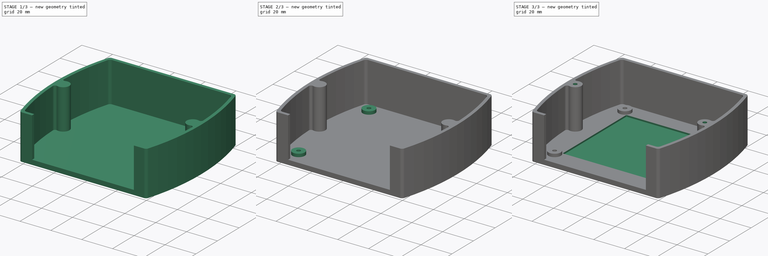
[diagram: build sequence overview — one tinted view per stage of 3, left to right]
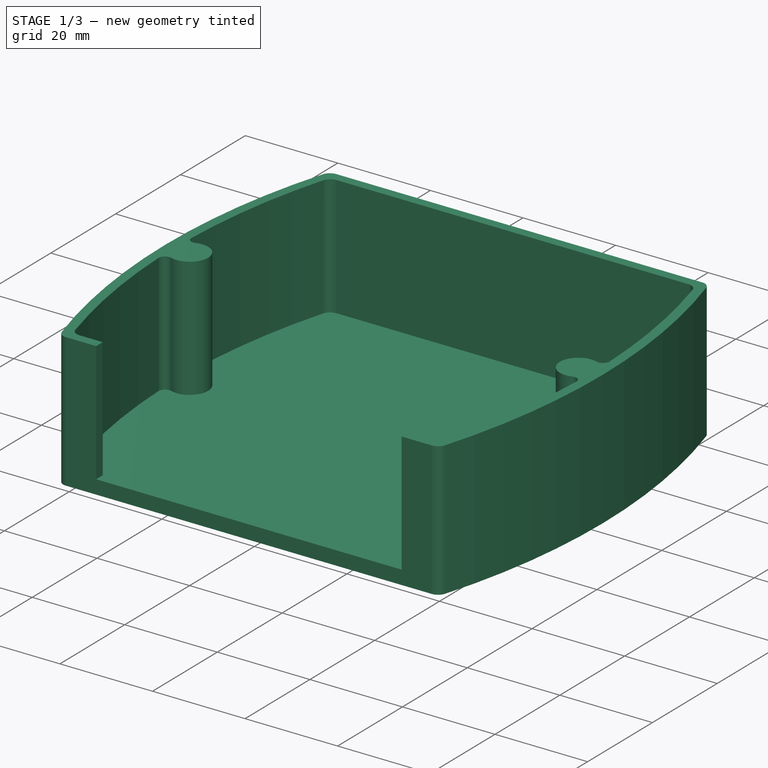
[diagram: stage 1 of 3 — iso view after this stage's code; geometry added in this stage tinted green]
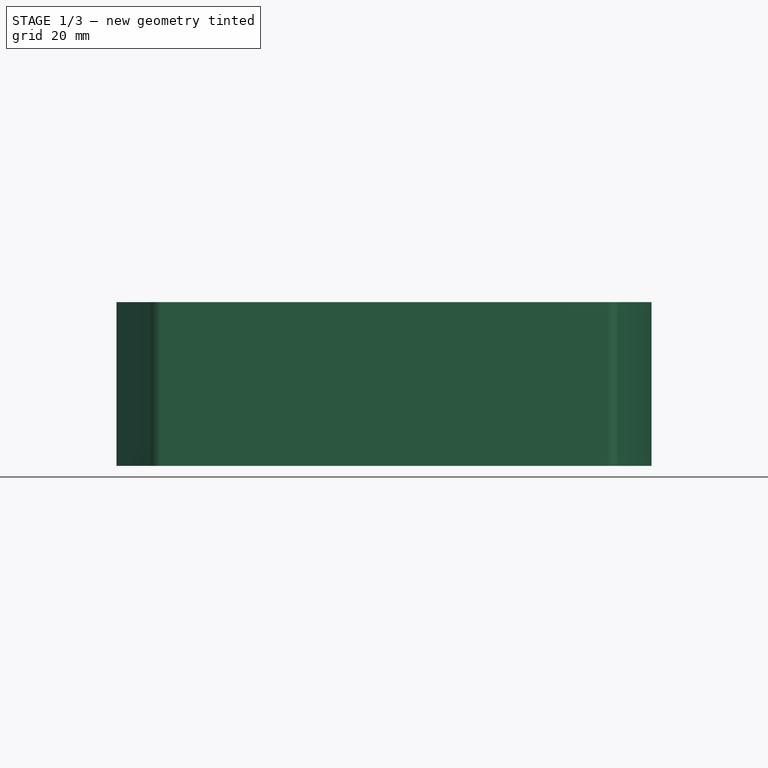
[diagram: stage 1 of 3 — front view after this stage's code; geometry added in this stage tinted green]
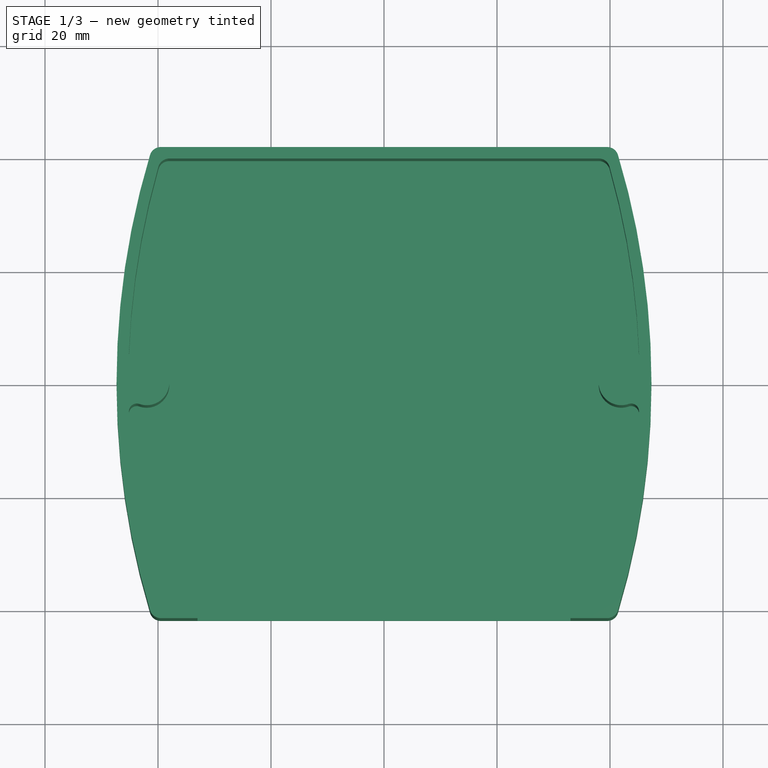
[diagram: stage 1 of 3 — top view after this stage's code; geometry added in this stage tinted green]
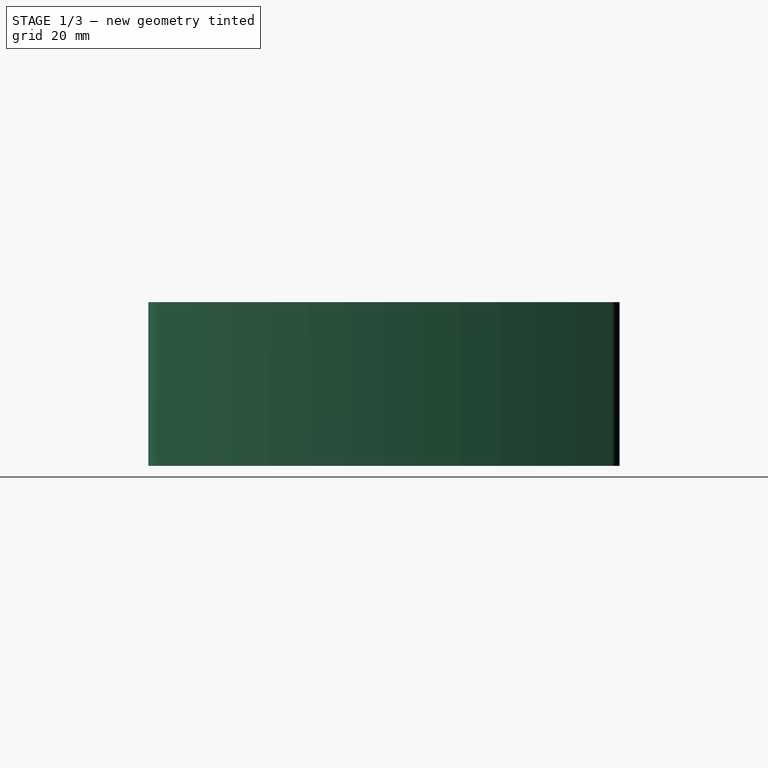
[diagram: stage 1 of 3 — right view after this stage's code; geometry added in this stage tinted green]
FCSTD DOCUMENT  (FreeCAD 0.16R6706 (Git))
Label: Box-001
License: All rights reserved
LicenseURL: http://en.wikipedia.org/wiki/All_rights_reserved
objects: Sketcher::SketchObject×8, PartDesign::Pocket×4, PartDesign::Pad×2
note: 20 computed .brp shape members not serialized (recipe doc carries the construction recipe); baked Part::Feature solids carry a one-line shape summary decoded from their .brp

FEATURE [Sketcher::SketchObject] Sketch  label="Carte"
  Placement = pos=(0,0,5) rot=(0,0,1;0rad)
  sketch-geometry (14):
    g0: LineSegment StartX=-37.5 StartY=37.5 StartZ=0 EndX=37.5 EndY=37.5 EndZ=0
    g1: LineSegment StartX=37.5 StartY=37.5 StartZ=0 EndX=37.5 EndY=-37.5 EndZ=0
    g2: LineSegment StartX=37.5 StartY=-37.5 StartZ=0 EndX=-37.5 EndY=-37.5 EndZ=0
    g3: LineSegment StartX=-37.5 StartY=-37.5 StartZ=0 EndX=-37.5 EndY=37.5 EndZ=0
    g4: Circle [constr] CenterX=0 CenterY=0 CenterZ=0 NormalX=0 NormalY=0 NormalZ=1 Radius=53.033
    g5: Circle CenterX=-32.5 CenterY=32.5 CenterZ=0 NormalX=0 NormalY=0 NormalZ=1 Radius=3.2
    g6: Circle CenterX=32.5 CenterY=32.5 CenterZ=0 NormalX=0 NormalY=0 NormalZ=1 Radius=3.2
    g7: Circle CenterX=32.5 CenterY=-32.5 CenterZ=0 NormalX=0 NormalY=0 NormalZ=1 Radius=3.2
    g8: Circle CenterX=-32.5 CenterY=-32.5 CenterZ=0 NormalX=0 NormalY=0 NormalZ=1 Radius=3.2
    g9: Circle [constr] CenterX=0 CenterY=0 CenterZ=0 NormalX=0 NormalY=0 NormalZ=1 Radius=45.9619
    g10: LineSegment [constr] StartX=-32.5 StartY=32.5 StartZ=0 EndX=32.5 EndY=32.5 EndZ=0
    g11: LineSegment [constr] StartX=32.5 StartY=32.5 StartZ=0 EndX=32.5 EndY=-32.5 EndZ=0
    g12: LineSegment [constr] StartX=32.5 StartY=-32.5 StartZ=0 EndX=-32.5 EndY=-32.5 EndZ=0
    g13: LineSegment [constr] StartX=-32.5 StartY=-32.5 StartZ=0 EndX=-32.5 EndY=32.5 EndZ=0
  constraints (36):
    c: Coincident(g0,g1)
    c: Coincident(g1,g2)
    c: Coincident(g2,g3)
    c: Coincident(g3,g0)
    c: Horizontal(g0)
    c: Horizontal(g2)
    c: Vertical(g1)
    c: Vertical(g3)
    c: DistanceX(g0,g0) = 75
    c: DistanceY(g1,g1) = 75
    c: Coincident(g4,g-1)
    c: PointOnObject(g0,g4)
    c: PointOnObject(g0,g4)
    c: PointOnObject(g1,g4)
    c: Radius(g5) = 3.2
    c: Equal(g5,g6)
    c: Equal(g5,g7)
    c: Equal(g5,g8)
    c: Coincident(g9,g-1)
    c: Coincident(g10,g11)
    c: Coincident(g11,g12)
    c: Coincident(g12,g13)
    c: Coincident(g13,g10)
    c: Horizontal(g10)
    c: Horizontal(g12)
    c: Vertical(g11)
    c: Vertical(g13)
    c: PointOnObject(g10,g9)
    c: PointOnObject(g11,g9)
    c: Equal(g10,g11)
    c: DistanceX(g10,g10) = 65
    c: PointOnObject(g10,g9)
    c: Coincident(g8,g12)
    c: Coincident(g7,g11)
    c: Coincident(g5,g10)
    c: Coincident(g6,g10)
FEATURE [Sketcher::SketchObject] Sketch002  label="Sketch001"
  sketch-geometry (9):
    g0: ArcOfCircle CenterX=92.6675 CenterY=0 CenterZ=0 NormalX=0 NormalY=0 NormalZ=1 Radius=140 StartAngle=2.84982 EndAngle=3.43337
    g1: ArcOfCircle CenterX=-39.5 CenterY=-39.6957 CenterZ=0 NormalX=0 NormalY=0 NormalZ=1 Radius=2 StartAngle=3.43337 EndAngle=4.71239
    g2: ArcOfCircle CenterX=-39.5 CenterY=39.6957 CenterZ=0 NormalX=0 NormalY=0 NormalZ=1 Radius=2 StartAngle=1.5708 EndAngle=2.84982
    g3: ArcOfCircle CenterX=39.5 CenterY=39.6957 CenterZ=0 NormalX=0 NormalY=0 NormalZ=1 Radius=2 StartAngle=0.291772 EndAngle=1.5708
    g4: ArcOfCircle CenterX=39.5 CenterY=-39.6957 CenterZ=0 NormalX=0 NormalY=0 NormalZ=1 Radius=2 StartAngle=4.71239 EndAngle=5.99141
    g5: ArcOfCircle CenterX=-92.6675 CenterY=0 CenterZ=0 NormalX=0 NormalY=0 NormalZ=1 Radius=140 StartAngle=5.99141 EndAngle=6.57496
    g6: LineSegment StartX=-39.5 StartY=41.6957 StartZ=0 EndX=39.5 EndY=41.6957 EndZ=0
    g7: LineSegment StartX=-39.5 StartY=-41.6957 StartZ=0 EndX=39.5 EndY=-41.6957 EndZ=0
    g8: Circle [constr] CenterX=0 CenterY=0 CenterZ=0 NormalX=0 NormalY=0 NormalZ=1 Radius=56
  constraints (24):
    c: PointOnObject(g0,g-1)
    c: PointOnObject(g5,g-1)
    c: Tangent(g4,g5) = -1.5708
    c: Tangent(g3,g5) = -1.5708
    c: Tangent(g0,g1) = -1.5708
    c: Tangent(g0,g2) = -1.5708
    c: Radius(g2) = 2
    c: Equal(g2,g3)
    c: Equal(g2,g4)
    c: Equal(g2,g1)
    c: Horizontal(g6)
    c: Horizontal(g7)
    c: Tangent(g4,g7) = -1.5708
    c: Tangent(g1,g7) = -1.5708
    c: Tangent(g2,g6) = 1.5708
    c: Tangent(g3,g6) = 1.5708
    c: DistanceX(g6,g6) = 79
    c: Equal(g7,g6)
    c: Coincident(g8,g-1)
    c: PointOnObject(g3,g8)
    c: PointOnObject(g2,g8)
    c: Radius(g8) = 56
    c: Equal(g0,g5)
    c: Radius(g0) = 140
FEATURE [PartDesign::Pad] Pad
  Length = 29
  Length2 = 100
  Sketch = -> Sketch002
  Type = 0
FEATURE [Sketcher::SketchObject] Sketch003  label="Sketch002"
  Placement = pos=(0,0,29) rot=(0,0,1;0rad)
  Support = -> Pad [Face10]
  sketch-geometry (21):
    g0: ArcOfCircle CenterX=-38 CenterY=-37.6597 CenterZ=0 NormalX=0 NormalY=0 NormalZ=1 Radius=2 StartAngle=3.41799 EndAngle=4.71239
    g1: ArcOfCircle CenterX=-38 CenterY=37.6597 CenterZ=0 NormalX=0 NormalY=0 NormalZ=1 Radius=2 StartAngle=1.5708 EndAngle=2.86519
    g2: ArcOfCircle CenterX=38 CenterY=37.6597 CenterZ=0 NormalX=0 NormalY=0 NormalZ=1 Radius=2 StartAngle=0.276402 EndAngle=1.5708
    g3: ArcOfCircle CenterX=38 CenterY=-37.6597 CenterZ=0 NormalX=0 NormalY=0 NormalZ=1 Radius=2 StartAngle=4.71239 EndAngle=6.00678
    g4: LineSegment StartX=-38 StartY=39.6597 StartZ=0 EndX=38 EndY=39.6597 EndZ=0
    g5: Circle [constr] CenterX=0 CenterY=0 CenterZ=0 NormalX=0 NormalY=0 NormalZ=1 Radius=53.5
    g6: ArcOfCircle CenterX=94.762 CenterY=0 CenterZ=0 NormalX=0 NormalY=0 NormalZ=1 Radius=140 StartAngle=2.86519 EndAngle=3.10471
    g7: ArcOfCircle CenterX=94.762 CenterY=0 CenterZ=0 NormalX=0 NormalY=0 NormalZ=1 Radius=140 StartAngle=3.17847 EndAngle=3.41799
    g8: ArcOfCircle CenterX=-94.762 CenterY=0 CenterZ=0 NormalX=0 NormalY=0 NormalZ=1 Radius=140 StartAngle=0.0368822 EndAngle=0.276402
    g9: ArcOfCircle CenterX=-94.762 CenterY=0 CenterZ=0 NormalX=0 NormalY=0 NormalZ=1 Radius=140 StartAngle=6.00678 EndAngle=6.2463
    g10: ArcOfCircle CenterX=42 CenterY=0 CenterZ=0 NormalX=0 NormalY=0 NormalZ=1 Radius=4 StartAngle=1.24199 EndAngle=5.0412
    g11: ArcOfCircle CenterX=43.7437 CenterY=5.11071 CenterZ=0 NormalX=0 NormalY=0 NormalZ=1 Radius=1.4 StartAngle=4.38358 EndAngle=6.32007
    g12: ArcOfCircle CenterX=43.7437 CenterY=-5.11071 CenterZ=0 NormalX=0 NormalY=0 NormalZ=1 Radius=1.4 StartAngle=6.2463 EndAngle=8.18279
    g13: ArcOfCircle CenterX=-42 CenterY=0 CenterZ=0 NormalX=0 NormalY=0 NormalZ=1 Radius=4 StartAngle=4.38358 EndAngle=8.18279
    g14: ArcOfCircle CenterX=-43.7437 CenterY=-5.11071 CenterZ=0 NormalX=0 NormalY=0 NormalZ=1 Radius=1.4 StartAngle=1.24199 EndAngle=3.17847
    g15: ArcOfCircle CenterX=-43.7437 CenterY=5.11071 CenterZ=0 NormalX=0 NormalY=0 NormalZ=1 Radius=1.4 StartAngle=3.10471 EndAngle=5.0412
    g16: LineSegment StartX=-38 StartY=-39.6597 StartZ=0 EndX=-33 EndY=-39.6597 EndZ=0
    g17: LineSegment StartX=-33 StartY=-39.6597 StartZ=0 EndX=-33 EndY=-42.6597 EndZ=0
    g18: LineSegment StartX=-33 StartY=-42.6597 StartZ=0 EndX=33 EndY=-42.6597 EndZ=0
    g19: LineSegment StartX=33 StartY=-42.6597 StartZ=0 EndX=33 EndY=-39.6597 EndZ=0
    g20: LineSegment StartX=33 StartY=-39.6597 StartZ=0 EndX=38 EndY=-39.6597 EndZ=0
  constraints (58):
    c: Radius(g1) = 2
    c: Equal(g1,g2)
    c: Equal(g1,g3)
    c: Equal(g1,g0)
    c: Horizontal(g4)
    c: Tangent(g1,g4) = 1.5708
    c: Tangent(g2,g4) = 1.5708
    c: DistanceX(g4,g4) = 76
    c: Coincident(g5,g-1)
    c: PointOnObject(g2,g5)
    c: PointOnObject(g1,g5)
    c: Radius(g5) = 53.5
    c: PointOnObject(g6,g-1)
    c: Coincident(g7,g6)
    c: PointOnObject(g8,g-1)
    c: Coincident(g9,g8)
    c: Radius(g6) = 140
    c: Equal(g6,g8)
    c: Equal(g6,g9)
    c: Equal(g6,g7)
    c: Tangent(g6,g1) = -1.5708
    c: Tangent(g0,g7) = -1.5708
    c: Tangent(g9,g3) = -1.5708
    c: Tangent(g2,g8) = -1.5708
    c: PointOnObject(g10,g-1)
    c: PointOnObject(g13,g-1)
    c: Tangent(g11,g10) = 1.5708
    c: Tangent(g11,g8) = -1.5708
    c: Tangent(g10,g12) = 1.5708
    c: Tangent(g12,g9) = -1.5708
    c: Tangent(g13,g15) = 1.5708
    c: Tangent(g15,g6) = -1.5708
    c: Tangent(g14,g13) = 1.5708
    c: Tangent(g14,g7) = -1.5708
    c: Radius(g15) = 1.4
    c: Equal(g15,g14)
    c: Equal(g15,g11)
    c: Equal(g15,g12)
    c: Radius(g10) = 4
    c: Equal(g10,g13)
    c: DistanceX(g13) = -42
    c: DistanceX(g10) = 42
    c: Horizontal(g16)
    c: Coincident(g16,g17)
    c: Vertical(g17)
    c: Coincident(g17,g18)
    c: Horizontal(g18)
    c: Coincident(g18,g19)
    c: Vertical(g19)
    c: Coincident(g19,g20)
    c: Horizontal(g20)
    c: Tangent(g3,g20) = -1.5708
    c: Tangent(g0,g16) = -1.5708
    c: PointOnObject(g3,g5)
    c: PointOnObject(g0,g5)
    c: DistanceY(g17,g17) = 3
    c: Equal(g16,g20)
    c: DistanceX(g20,g20) = 5
FEATURE [Sketcher::SketchObject] Sketch007  label="Trous-USB-ALIM"
  Placement = pos=(0,-41.6957,0) rot=(1,0,0;1.5708rad)
  sketch-geometry (10):
    g0: LineSegment StartX=-22 StartY=19 StartZ=0 EndX=-10 EndY=19 EndZ=0
    g1: LineSegment StartX=-10 StartY=19 StartZ=0 EndX=-10 EndY=7 EndZ=0
    g2: LineSegment StartX=-10 StartY=7 StartZ=0 EndX=-22 EndY=7 EndZ=0
    g3: LineSegment StartX=-22 StartY=7 StartZ=0 EndX=-22 EndY=19 EndZ=0
    g4: LineSegment StartX=5.5 StartY=26.5 StartZ=0 EndX=16.5 EndY=26.5 EndZ=0
    g5: LineSegment StartX=16.5 StartY=26.5 StartZ=0 EndX=16.5 EndY=17.5 EndZ=0
    g6: LineSegment StartX=16.5 StartY=17.5 StartZ=0 EndX=5.5 EndY=17.5 EndZ=0
    g7: LineSegment StartX=5.5 StartY=17.5 StartZ=0 EndX=5.5 EndY=26.5 EndZ=0
    g8: Circle [constr] CenterX=-16 CenterY=13 CenterZ=0 NormalX=0 NormalY=0 NormalZ=1 Radius=8.48528
    g9: Circle [constr] CenterX=11 CenterY=22 CenterZ=0 NormalX=0 NormalY=0 NormalZ=1 Radius=7.10634
  constraints (30):
    c: Coincident(g0,g1)
    c: Coincident(g1,g2)
    c: Coincident(g2,g3)
    c: Coincident(g3,g0)
    c: Horizontal(g0)
    c: Horizontal(g2)
    c: Vertical(g1)
    c: Vertical(g3)
    c: Coincident(g4,g5)
    c: Coincident(g5,g6)
    c: Coincident(g6,g7)
    c: Coincident(g7,g4)
    c: Horizontal(g4)
    c: Horizontal(g6)
    c: Vertical(g5)
    c: Vertical(g7)
    c: DistanceX(g0,g0) = 12
    c: DistanceY(g1,g1) = 12
    c: DistanceX(g4,g4) = 11
    c: DistanceY(g5,g5) = 9
    c: PointOnObject(g4,g9)
    c: PointOnObject(g5,g9)
    c: PointOnObject(g4,g9)
    c: PointOnObject(g0,g8)
    c: PointOnObject(g0,g8)
    c: PointOnObject(g1,g8)
    c: DistanceX(g8) = -16
    c: DistanceY(g8) = 13
    c: DistanceX(g9) = 11
    c: DistanceY(g9) = 22
FEATURE [PartDesign::Pocket] Pocket
  Length = 26
  Sketch = -> Sketch003
  Type = 0
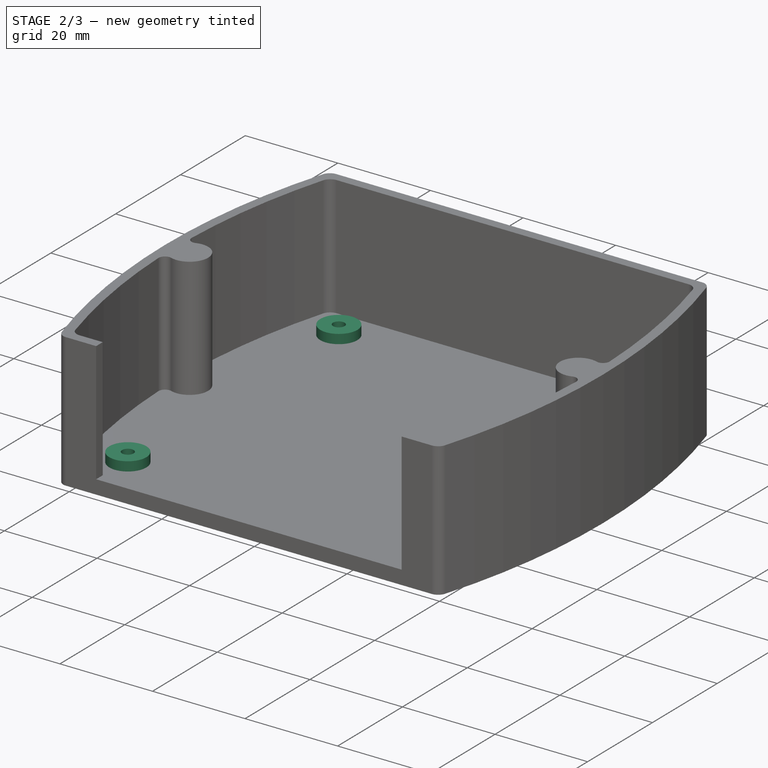
[diagram: stage 2 of 3 — iso view after this stage's code; geometry added in this stage tinted green]
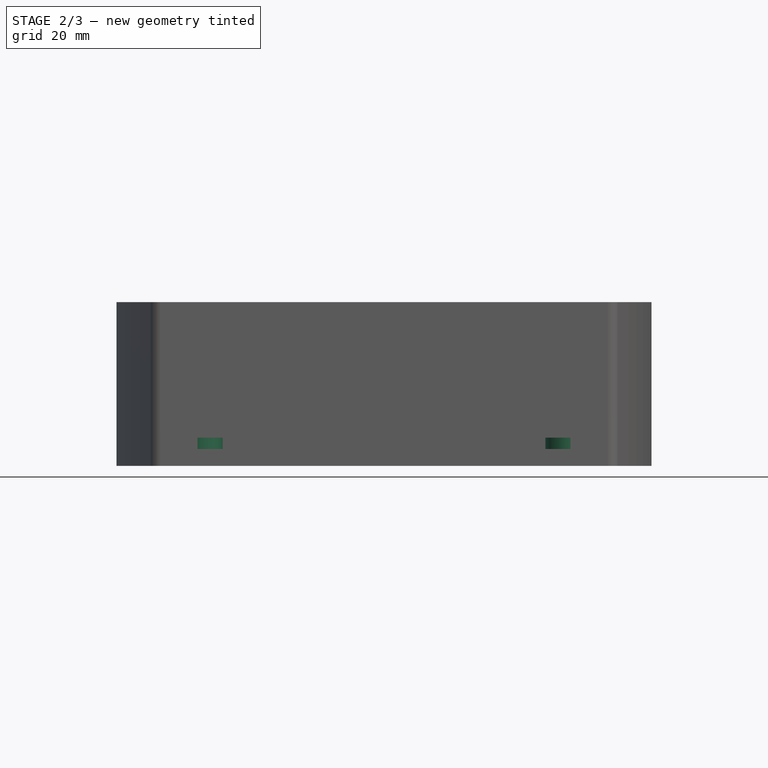
[diagram: stage 2 of 3 — front view after this stage's code; geometry added in this stage tinted green]
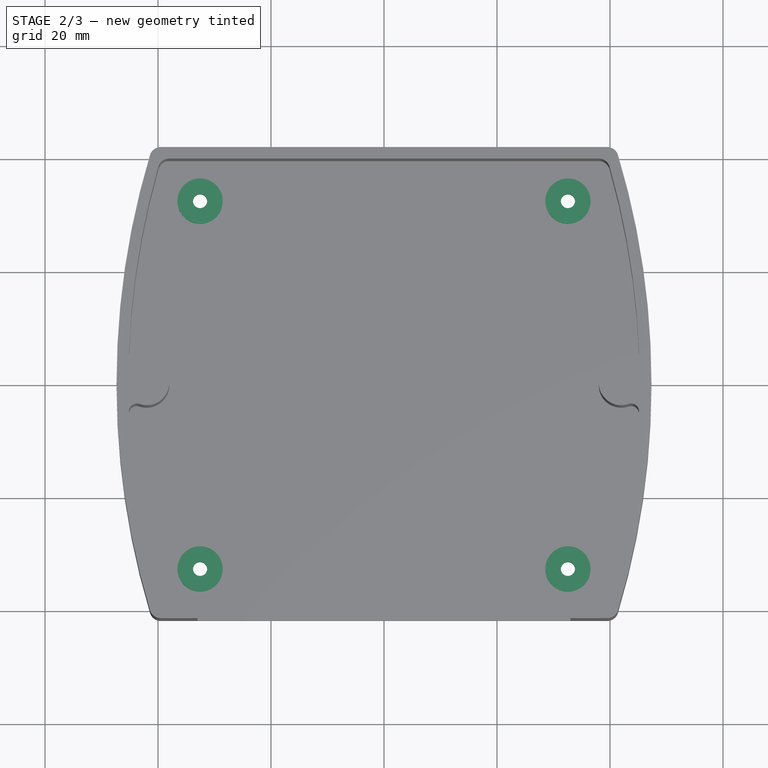
[diagram: stage 2 of 3 — top view after this stage's code; geometry added in this stage tinted green]
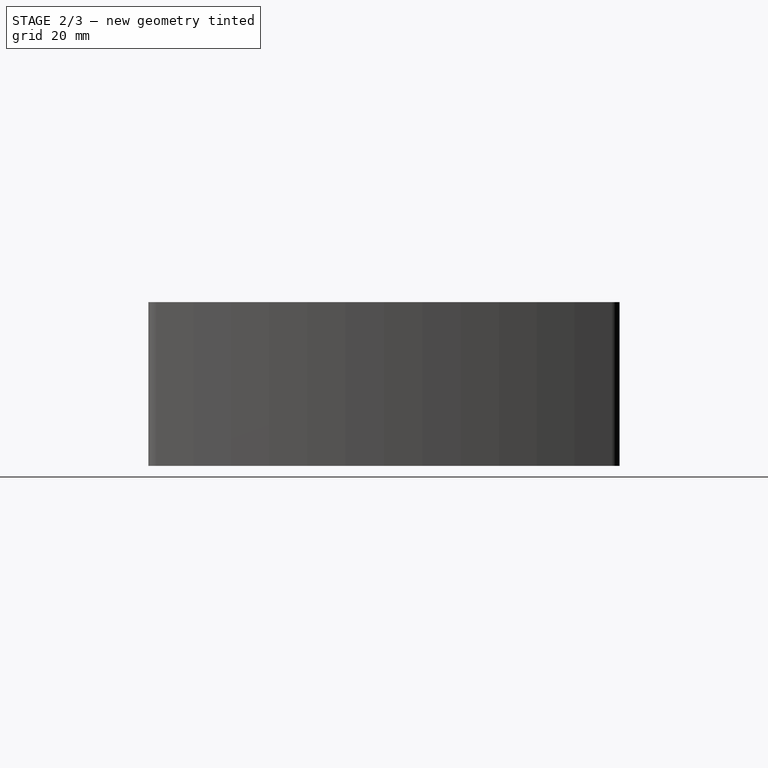
[diagram: stage 2 of 3 — right view after this stage's code; geometry added in this stage tinted green]
FEATURE [Sketcher::SketchObject] Sketch004  label="Sketch"
  Placement = pos=(0,0,3) rot=(0,0,1;0rad)
  Support = -> Pocket [Face30]
  sketch-geometry (9):
    g0: Circle CenterX=-32.55 CenterY=32.55 CenterZ=0 NormalX=0 NormalY=0 NormalZ=1 Radius=4
    g1: Circle CenterX=32.55 CenterY=32.55 CenterZ=0 NormalX=0 NormalY=0 NormalZ=1 Radius=4
    g2: Circle CenterX=32.55 CenterY=-32.55 CenterZ=0 NormalX=0 NormalY=0 NormalZ=1 Radius=4
    g3: Circle CenterX=-32.55 CenterY=-32.55 CenterZ=0 NormalX=0 NormalY=0 NormalZ=1 Radius=4
    g4: Circle [constr] CenterX=0 CenterY=0 CenterZ=0 NormalX=0 NormalY=0 NormalZ=1 Radius=46.0327
    g5: LineSegment [constr] StartX=-32.55 StartY=32.55 StartZ=0 EndX=32.55 EndY=32.55 EndZ=0
    g6: LineSegment [constr] StartX=32.55 StartY=32.55 StartZ=0 EndX=32.55 EndY=-32.55 EndZ=0
    g7: LineSegment [constr] StartX=32.55 StartY=-32.55 StartZ=0 EndX=-32.55 EndY=-32.55 EndZ=0
    g8: LineSegment [constr] StartX=-32.55 StartY=-32.55 StartZ=0 EndX=-32.55 EndY=32.55 EndZ=0
  constraints (22):
    c: Radius(g0) = 4
    c: Equal(g0,g1)
    c: Equal(g0,g2)
    c: Equal(g0,g3)
    c: Coincident(g4,g-1)
    c: Coincident(g5,g6)
    c: Coincident(g6,g7)
    c: Coincident(g7,g8)
    c: Coincident(g8,g5)
    c: Horizontal(g5)
    c: Horizontal(g7)
    c: Vertical(g6)
    c: Vertical(g8)
    c: PointOnObject(g5,g4)
    c: PointOnObject(g6,g4)
    c: Equal(g5,g6)
    c: DistanceX(g5,g5) = 65.1
    c: PointOnObject(g5,g4)
    c: Coincident(g3,g7)
    c: Coincident(g2,g6)
    c: Coincident(g0,g5)
    c: Coincident(g1,g5)
FEATURE [PartDesign::Pad] Pad001
  Length = 2
  Length2 = 100
  Sketch = -> Sketch004
  Type = 0
FEATURE [Sketcher::SketchObject] Sketch005  label="Sketch003"
  Placement = pos=(0,0,0) rot=(1,0,0;3.14159rad)
  Support = -> Pad001 [Face4]
  sketch-geometry (9):
    g0: Circle CenterX=-32.55 CenterY=32.55 CenterZ=0 NormalX=0 NormalY=0 NormalZ=1 Radius=1.25
    g1: Circle CenterX=32.55 CenterY=32.55 CenterZ=0 NormalX=0 NormalY=0 NormalZ=1 Radius=1.25
    g2: Circle CenterX=32.55 CenterY=-32.55 CenterZ=0 NormalX=0 NormalY=0 NormalZ=1 Radius=1.25
    g3: Circle CenterX=-32.55 CenterY=-32.55 CenterZ=0 NormalX=0 NormalY=0 NormalZ=1 Radius=1.25
    g4: Circle [constr] CenterX=0 CenterY=0 CenterZ=0 NormalX=0 NormalY=0 NormalZ=1 Radius=46.0327
    g5: LineSegment [constr] StartX=-32.55 StartY=32.55 StartZ=0 EndX=32.55 EndY=32.55 EndZ=0
    g6: LineSegment [constr] StartX=32.55 StartY=32.55 StartZ=0 EndX=32.55 EndY=-32.55 EndZ=0
    g7: LineSegment [constr] StartX=32.55 StartY=-32.55 StartZ=0 EndX=-32.55 EndY=-32.55 EndZ=0
    g8: LineSegment [constr] StartX=-32.55 StartY=-32.55 StartZ=0 EndX=-32.55 EndY=32.55 EndZ=0
  constraints (22):
    c: Radius(g0) = 1.25
    c: Equal(g0,g1)
    c: Equal(g0,g2)
    c: Equal(g0,g3)
    c: Coincident(g4,g-1)
    c: Coincident(g5,g6)
    c: Coincident(g6,g7)
    c: Coincident(g7,g8)
    c: Coincident(g8,g5)
    c: Horizontal(g5)
    c: Horizontal(g7)
    c: Vertical(g6)
    c: Vertical(g8)
    c: PointOnObject(g5,g4)
    c: PointOnObject(g6,g4)
    c: Equal(g5,g6)
    c: DistanceX(g5,g5) = 65.1
    c: PointOnObject(g5,g4)
    c: Coincident(g3,g7)
    c: Coincident(g2,g6)
    c: Coincident(g0,g5)
    c: Coincident(g1,g5)
FEATURE [PartDesign::Pocket] Pocket001
  Length = 5
  Sketch = -> Sketch005
  Type = 0
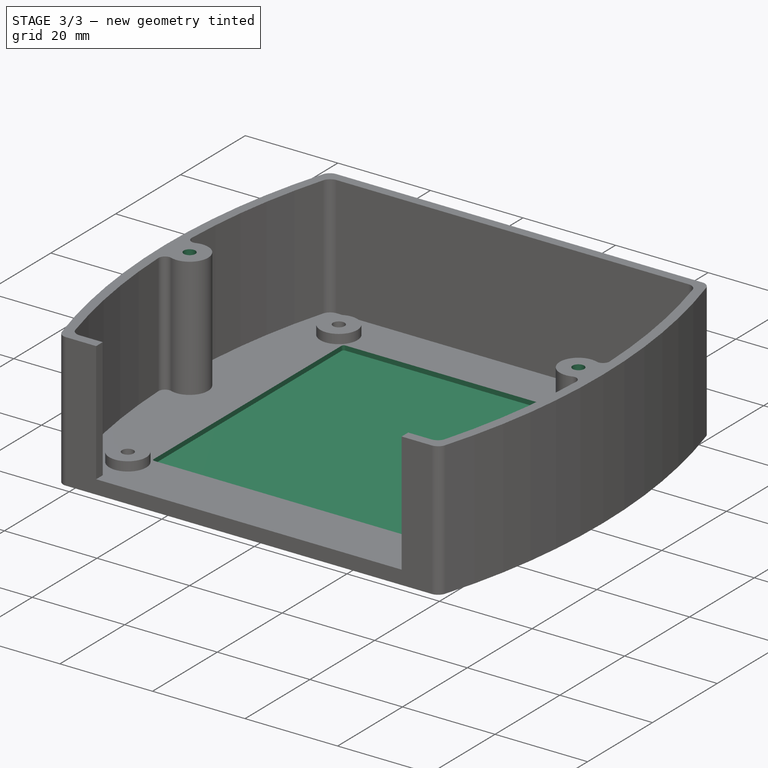
[diagram: stage 3 of 3 — iso view after this stage's code; geometry added in this stage tinted green]
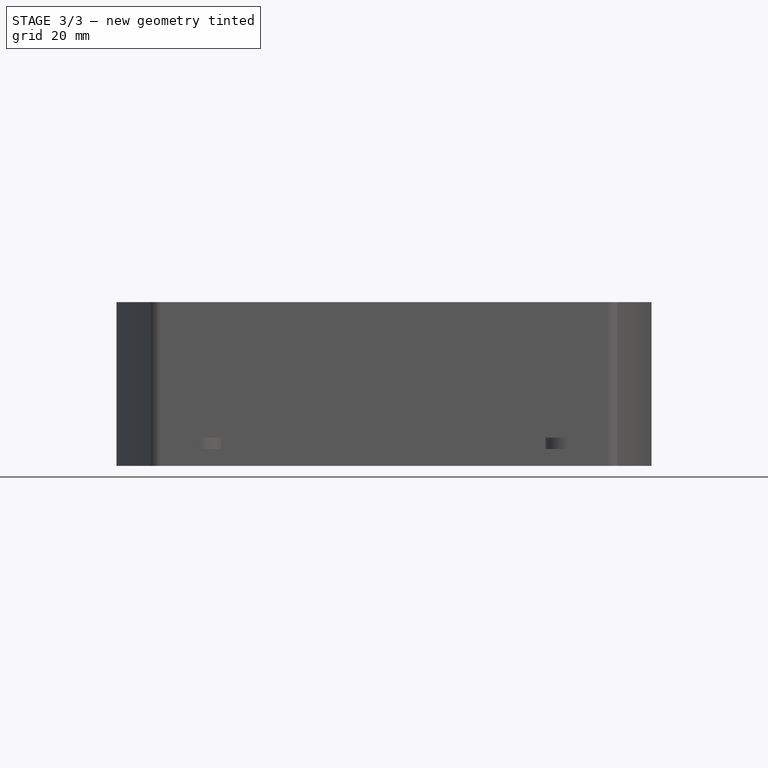
[diagram: stage 3 of 3 — front view after this stage's code; geometry added in this stage tinted green]
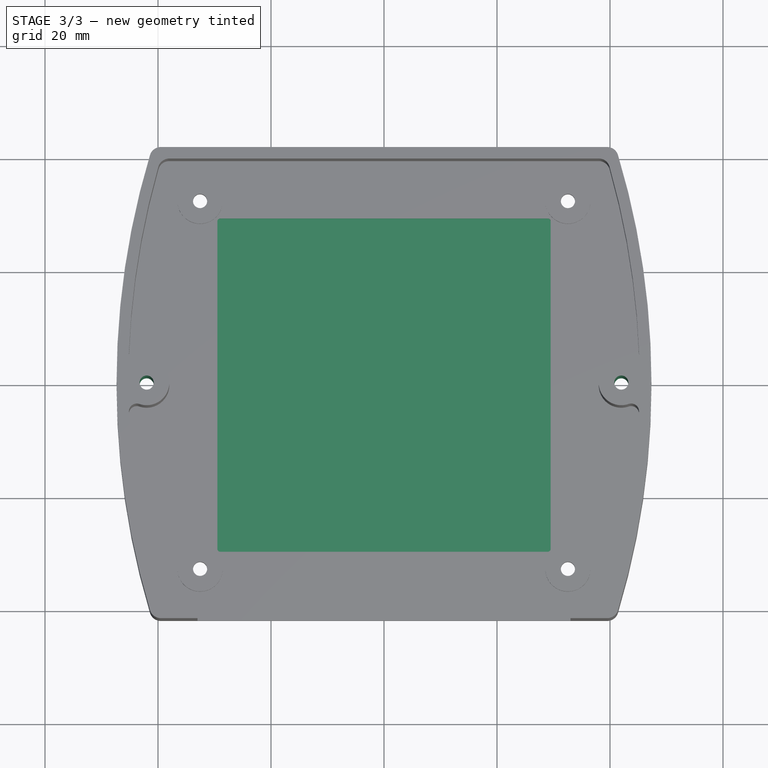
[diagram: stage 3 of 3 — top view after this stage's code; geometry added in this stage tinted green]
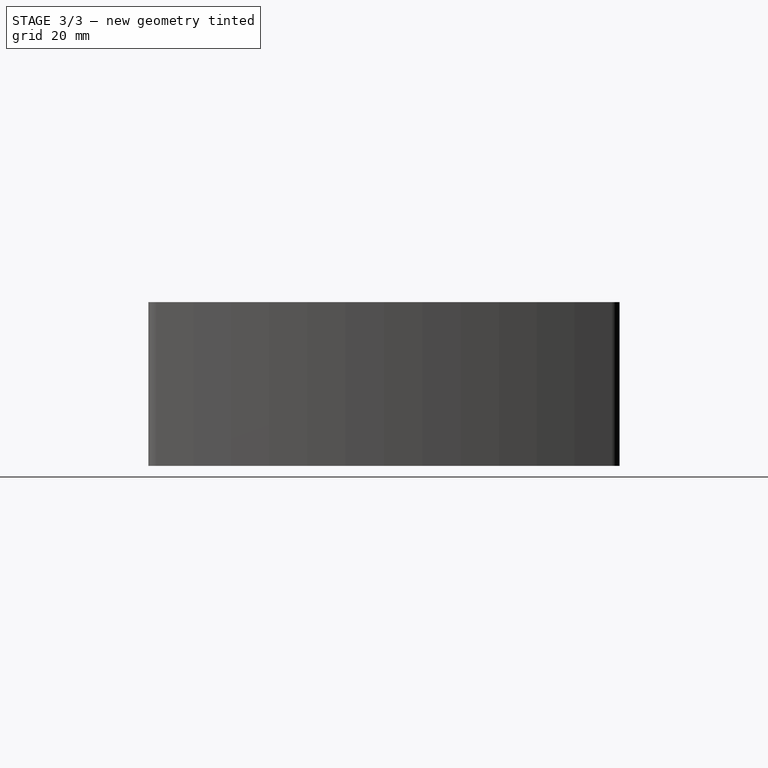
[diagram: stage 3 of 3 — right view after this stage's code; geometry added in this stage tinted green]
FEATURE [Sketcher::SketchObject] Sketch006
  Placement = pos=(0,0,0) rot=(1,0,0;3.14159rad)
  Support = -> Pocket001 [Face4]
  sketch-geometry (2):
    g0: Circle CenterX=-42 CenterY=0 CenterZ=0 NormalX=0 NormalY=0 NormalZ=1 Radius=1.25
    g1: Circle CenterX=42 CenterY=0 CenterZ=0 NormalX=0 NormalY=0 NormalZ=1 Radius=1.25
  constraints (6):
    c: PointOnObject(g0,g-1)
    c: PointOnObject(g1,g-1)
    c: Radius(g1) = 1.25
    c: Equal(g1,g0)
    c: DistanceX(g0) = -42
    c: DistanceX(g1) = 42
FEATURE [PartDesign::Pocket] Pocket002
  Length = 29
  Sketch = -> Sketch006
  Type = 0
FEATURE [Sketcher::SketchObject] Sketch008
  Placement = pos=(0,0,3) rot=(0,0,1;0rad)
  Support = -> Pocket002 [Face36]
  sketch-geometry (9):
    g0: LineSegment StartX=-28.9914 StartY=29.4914 StartZ=0 EndX=28.9914 EndY=29.4914 EndZ=0
    g1: LineSegment StartX=29.4914 StartY=28.9914 StartZ=0 EndX=29.4914 EndY=-28.9914 EndZ=0
    g2: LineSegment StartX=28.9914 StartY=-29.4914 StartZ=0 EndX=-28.9914 EndY=-29.4914 EndZ=0
    g3: LineSegment StartX=-29.4914 StartY=-28.9914 StartZ=0 EndX=-29.4914 EndY=28.9914 EndZ=0
    g4: ArcOfCircle CenterX=-28.9914 CenterY=28.9914 CenterZ=0 NormalX=0 NormalY=0 NormalZ=1 Radius=0.5 StartAngle=1.5708 EndAngle=3.14159
    g5: ArcOfCircle CenterX=28.9914 CenterY=28.9914 CenterZ=0 NormalX=0 NormalY=0 NormalZ=1 Radius=0.5 StartAngle=0 EndAngle=1.5708
    g6: ArcOfCircle CenterX=28.9914 CenterY=-28.9914 CenterZ=0 NormalX=0 NormalY=0 NormalZ=1 Radius=0.5 StartAngle=4.71239 EndAngle=6.28319
    g7: ArcOfCircle CenterX=-28.9914 CenterY=-28.9914 CenterZ=0 NormalX=0 NormalY=0 NormalZ=1 Radius=0.5 StartAngle=3.14159 EndAngle=4.71239
    g8: Circle [constr] CenterX=0 CenterY=0 CenterZ=0 NormalX=0 NormalY=0 NormalZ=1 Radius=41
  constraints (22):
    c: Horizontal(g0)
    c: Horizontal(g2)
    c: Vertical(g1)
    c: Vertical(g3)
    c: Tangent(g0,g4) = 1.5708
    c: Tangent(g3,g4) = 1.5708
    c: Tangent(g0,g5) = 1.5708
    c: Tangent(g1,g5) = 1.5708
    c: Tangent(g1,g6) = 1.5708
    c: Tangent(g2,g6) = 1.5708
    c: Tangent(g2,g7) = 1.5708
    c: Tangent(g3,g7) = 1.5708
    c: Radius(g4) = 0.5
    c: Equal(g4,g5)
    c: Equal(g4,g6)
    c: Equal(g4,g7)
    c: Coincident(g8,g-1)
    c: PointOnObject(g5,g8)
    c: PointOnObject(g4,g8)
    c: PointOnObject(g7,g8)
    c: Equal(g0,g1)
    c: Radius(g8) = 41
FEATURE [PartDesign::Pocket] Pocket003
  Length = 1
  Sketch = -> Sketch008
  Type = 0
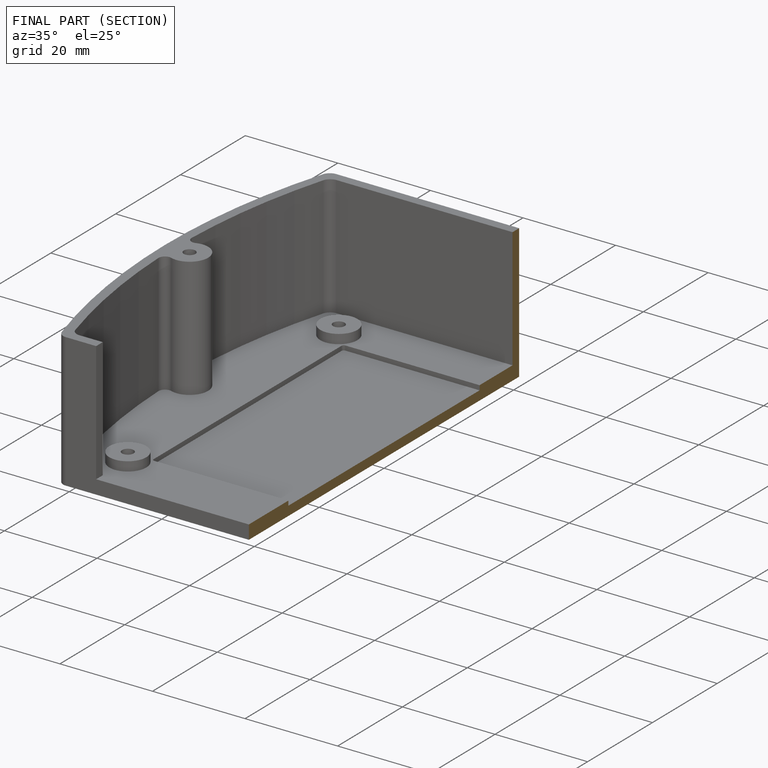
[diagram: finished part — half-section view (interior)]
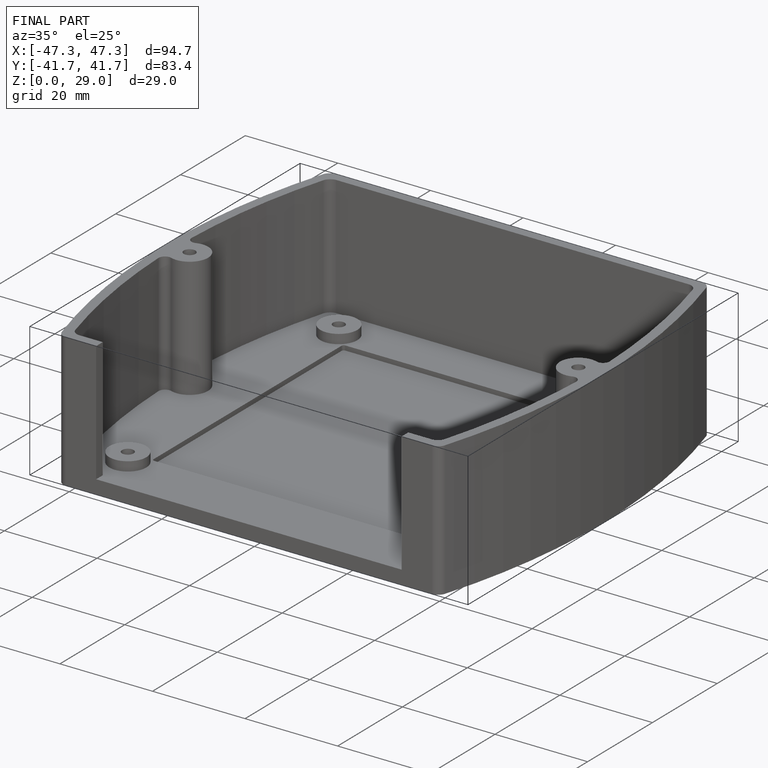
[diagram: finished part — iso view with bounding-box wireframe]
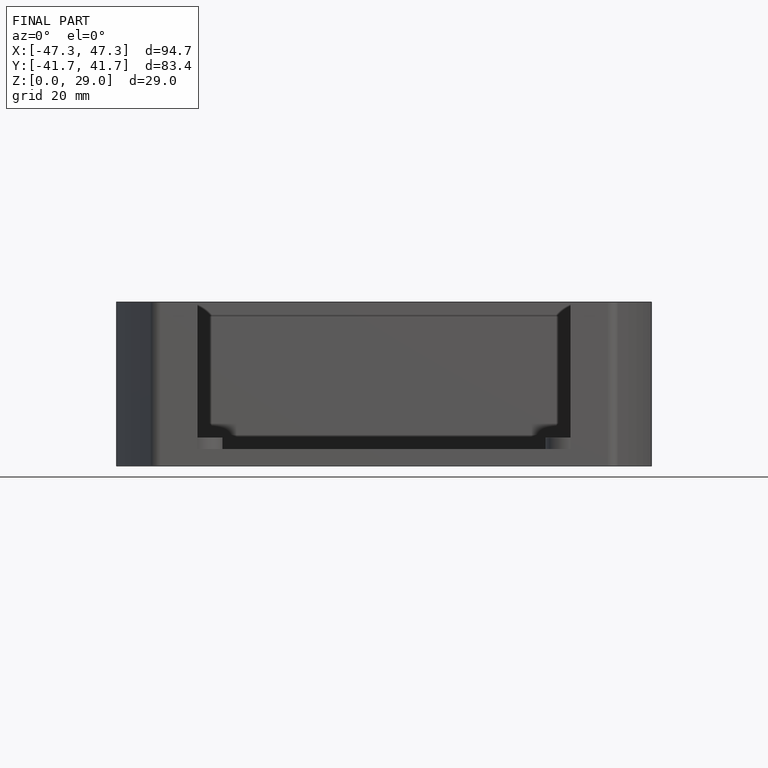
[diagram: finished part — front view with bounding-box wireframe]
